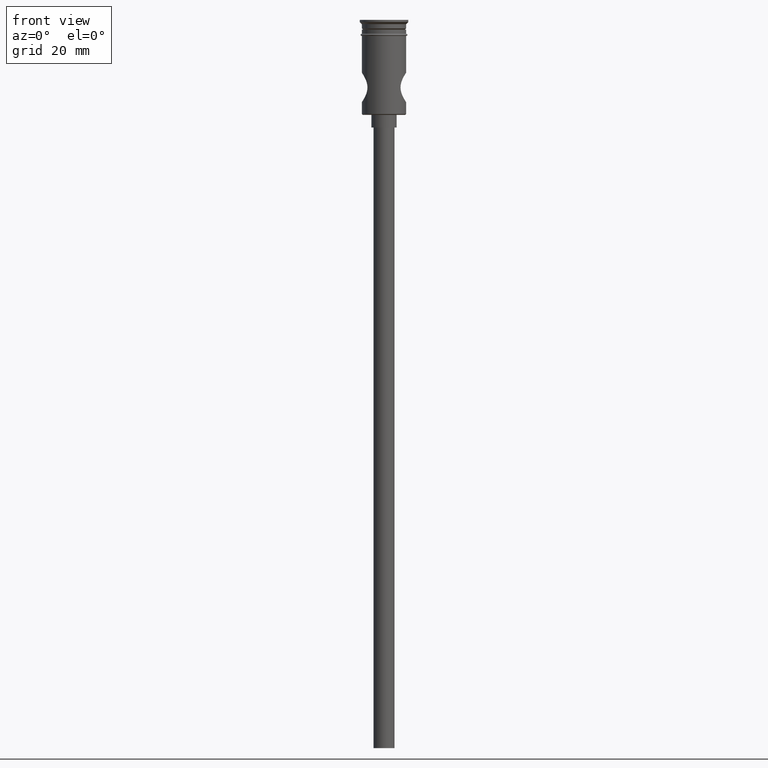
[diagram: clean part render]
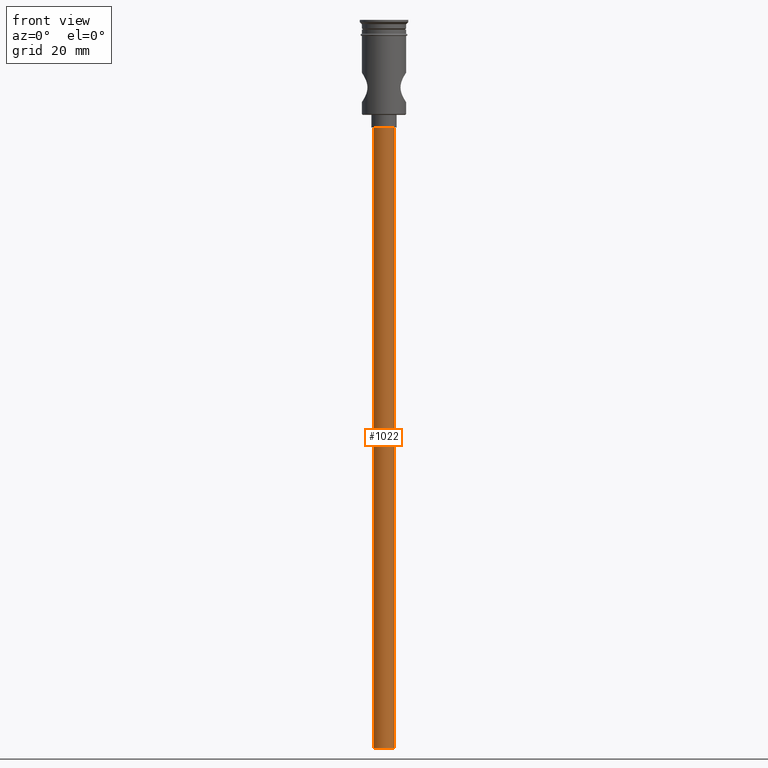
[diagram: same view with one face highlighted and labeled with its STEP entity id]
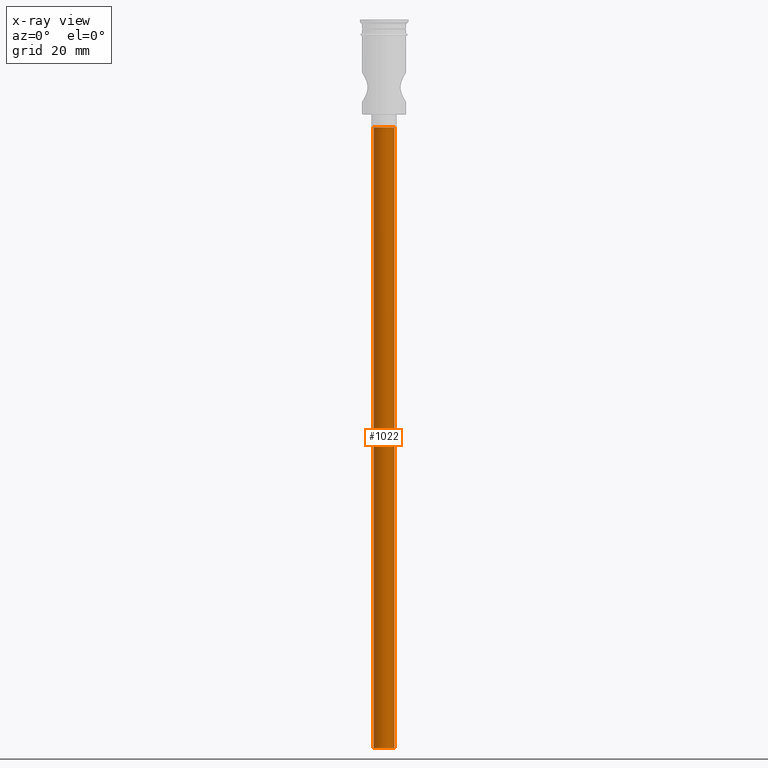
[diagram: x-ray of the same camera — body ghosted, the highlighted face saturated]
A machine part, front view. The second image highlights one B-rep face of the part: STEP entity #1022.
The next image is the same camera in x-ray: the body ghosted, the highlighted face saturated — about 0% of this face is hidden behind the body in this view.
In plain terms, the highlighted cylindrical surface (edge-blend (fillet) strip) has radius 2.5 mm, axis along (-0, -0, 1).
Its self-contained STEP definition (entity closure, byte-faithful):
#7 = DIRECTION ( 'NONE',  ( 0.000000000000000000, 0.000000000000000000, -1.000000000000000000 ) ) ;
#30 = AXIS2_PLACEMENT_3D ( 'NONE', #180, #773, #1197 ) ;
#41 = EDGE_LOOP ( 'NONE', ( #1147, #718, #811, #277 ) ) ;
#85 = CYLINDRICAL_SURFACE ( 'NONE', #30, 2.500000000000000000 ) ;
#146 = CARTESIAN_POINT ( 'NONE',  ( -2.500000000000000000, 3.061616997868383141E-16, -172.5000000000000000 ) ) ;
#147 = DIRECTION ( 'NONE',  ( 0.000000000000000000, 0.000000000000000000, -1.000000000000000000 ) ) ;
#180 = CARTESIAN_POINT ( 'NONE',  ( 0.000000000000000000, 0.000000000000000000, -172.5000000000000000 ) ) ;
#205 = CARTESIAN_POINT ( 'NONE',  ( 2.500000000000000000, 0.000000000000000000, -172.5000000000000000 ) ) ;
#235 = CARTESIAN_POINT ( 'NONE',  ( -2.500000000000000000, 3.061616997868383141E-16, -25.50000000000000000 ) ) ;
#244 = DIRECTION ( 'NONE',  ( -0.000000000000000000, -0.000000000000000000, 1.000000000000000000 ) ) ;
#277 = ORIENTED_EDGE ( 'NONE', *, *, #1150, .T. ) ;
#320 = LINE ( 'NONE', #205, #1162 ) ;
#348 = LINE ( 'NONE', #896, #1142 ) ;
#371 = VERTEX_POINT ( 'NONE', #1367 ) ;
#380 = CIRCLE ( 'NONE', #1193, 2.500000000000000000 ) ;
#431 = CIRCLE ( 'NONE', #1190, 2.500000000000000000 ) ;
#580 = VERTEX_POINT ( 'NONE', #235 ) ;
#718 = ORIENTED_EDGE ( 'NONE', *, *, #908, .F. ) ;
#773 = DIRECTION ( 'NONE',  ( -0.000000000000000000, -0.000000000000000000, 1.000000000000000000 ) ) ;
#778 = CARTESIAN_POINT ( 'NONE',  ( 0.000000000000000000, 0.000000000000000000, -25.50000000000000000 ) ) ;
#783 = EDGE_CURVE ( 'NONE', #1290, #580, #348, .T. ) ;
#811 = ORIENTED_EDGE ( 'NONE', *, *, #1351, .T. ) ;
#896 = CARTESIAN_POINT ( 'NONE',  ( -2.500000000000000000, 3.061616997868383141E-16, -172.5000000000000000 ) ) ;
#908 = EDGE_CURVE ( 'NONE', #1137, #1290, #431, .T. ) ;
#935 = CARTESIAN_POINT ( 'NONE',  ( 0.000000000000000000, 0.000000000000000000, -172.5000000000000000 ) ) ;
#985 = CARTESIAN_POINT ( 'NONE',  ( 2.500000000000000000, 0.000000000000000000, -172.5000000000000000 ) ) ;
#1022 = ADVANCED_FACE ( 'NONE', ( #1203 ), #85, .T. ) ;
#1134 = DIRECTION ( 'NONE',  ( -1.000000000000000000, 0.000000000000000000, 0.000000000000000000 ) ) ;
#1137 = VERTEX_POINT ( 'NONE', #985 ) ;
#1142 = VECTOR ( 'NONE', #244, 1000.000000000000000 ) ;
#1147 = ORIENTED_EDGE ( 'NONE', *, *, #783, .F. ) ;
#1150 = EDGE_CURVE ( 'NONE', #371, #580, #380, .T. ) ;
#1162 = VECTOR ( 'NONE', #1426, 1000.000000000000000 ) ;
#1190 = AXIS2_PLACEMENT_3D ( 'NONE', #935, #147, #1134 ) ;
#1193 = AXIS2_PLACEMENT_3D ( 'NONE', #778, #7, #1210 ) ;
#1197 = DIRECTION ( 'NONE',  ( 1.000000000000000000, 0.000000000000000000, 0.000000000000000000 ) ) ;
#1203 = FACE_OUTER_BOUND ( 'NONE', #41, .T. ) ;
#1210 = DIRECTION ( 'NONE',  ( -1.000000000000000000, 0.000000000000000000, 0.000000000000000000 ) ) ;
#1290 = VERTEX_POINT ( 'NONE', #146 ) ;
#1351 = EDGE_CURVE ( 'NONE', #1137, #371, #320, .T. ) ;
#1367 = CARTESIAN_POINT ( 'NONE',  ( 2.500000000000000000, 0.000000000000000000, -25.50000000000000000 ) ) ;
#1426 = DIRECTION ( 'NONE',  ( -0.000000000000000000, -0.000000000000000000, 1.000000000000000000 ) ) ;